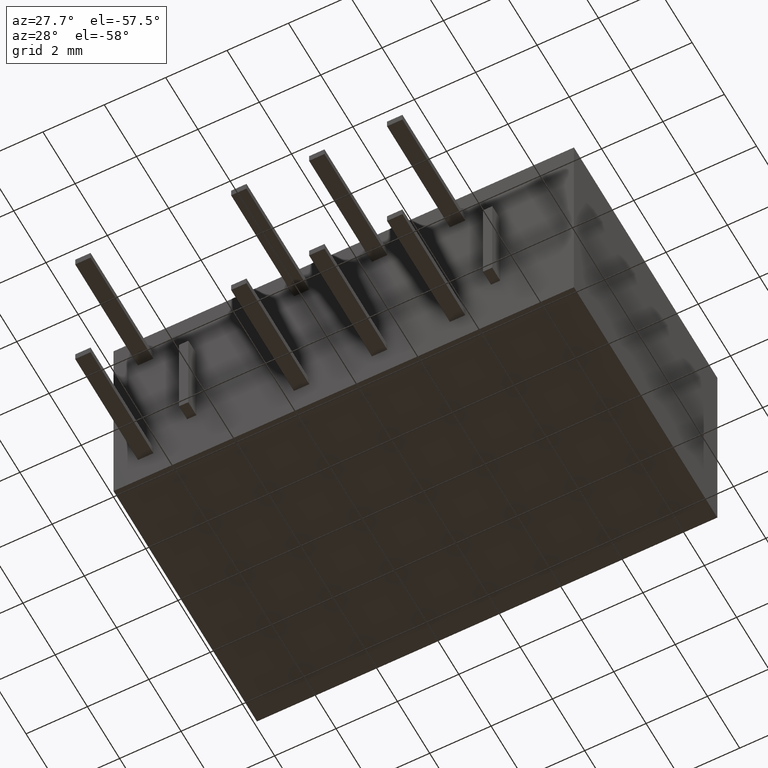
[diagram: clean part render]
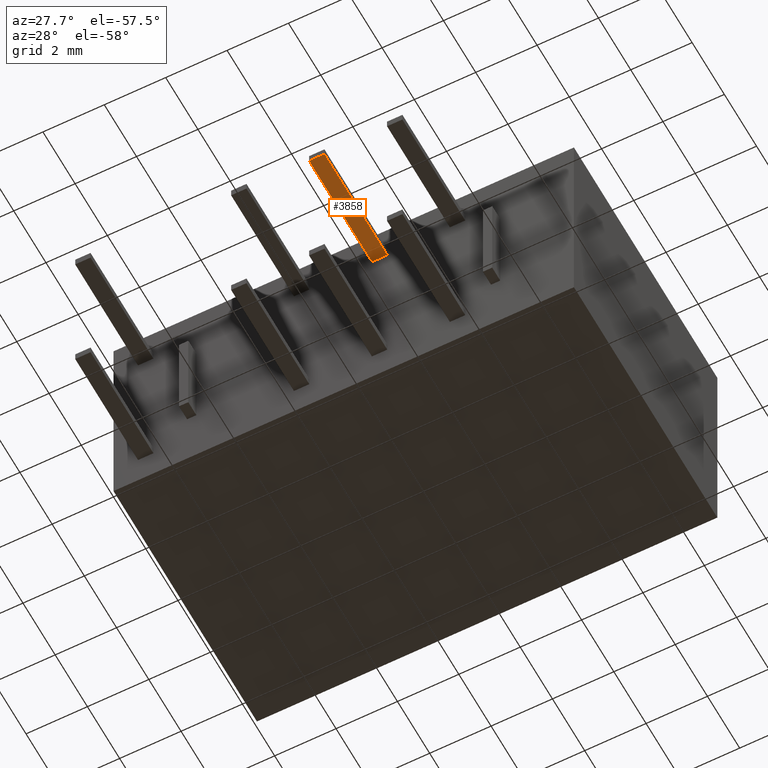
[diagram: same view with one face highlighted and labeled with its STEP entity id]
A machine part, auxiliary view. The second image highlights one B-rep face of the part: STEP entity #3858.
In plain terms, the highlighted planar face has unit normal (-0, 0, 1).
Its self-contained STEP definition (entity closure, byte-faithful):
#42 = EDGE_LOOP ( 'NONE', ( #3245, #1572, #2606, #2316 ) ) ;
#73 = VERTEX_POINT ( 'NONE', #4264 ) ;
#185 = LINE ( 'NONE', #4487, #4148 ) ;
#190 = DIRECTION ( 'NONE',  ( 1.000000000000000000, 0.0000000000000000000, 0.0000000000000000000 ) ) ;
#210 = VERTEX_POINT ( 'NONE', #3959 ) ;
#283 = EDGE_CURVE ( 'NONE', #210, #73, #2872, .T. ) ;
#423 = CARTESIAN_POINT ( 'NONE',  ( 8.919999999999999900, -3.899999999999999900, -1.335000000000015300 ) ) ;
#864 = EDGE_CURVE ( 'NONE', #3375, #3284, #1428, .T. ) ;
#1090 = DIRECTION ( 'NONE',  ( -0.0000000000000000000, 0.0000000000000000000, 1.000000000000000000 ) ) ;
#1376 = EDGE_CURVE ( 'NONE', #210, #3375, #185, .T. ) ;
#1428 = LINE ( 'NONE', #4072, #1959 ) ;
#1572 = ORIENTED_EDGE ( 'NONE', *, *, #4076, .F. ) ;
#1600 = DIRECTION ( 'NONE',  ( -0.0000000000000000000, 1.000000000000000000, -0.0000000000000000000 ) ) ;
#1849 = VECTOR ( 'NONE', #3241, 1000.000000000000000 ) ;
#1919 = CARTESIAN_POINT ( 'NONE',  ( 8.919999999999999900, 0.0000000000000000000, -1.335000000000015300 ) ) ;
#1959 = VECTOR ( 'NONE', #190, 1000.000000000000000 ) ;
#2257 = FACE_OUTER_BOUND ( 'NONE', #42, .T. ) ;
#2316 = ORIENTED_EDGE ( 'NONE', *, *, #1376, .T. ) ;
#2452 = CARTESIAN_POINT ( 'NONE',  ( 8.419999999999998200, -3.899999999999999900, -1.335000000000015300 ) ) ;
#2455 = AXIS2_PLACEMENT_3D ( 'NONE', #4464, #1090, #4485 ) ;
#2606 = ORIENTED_EDGE ( 'NONE', *, *, #283, .F. ) ;
#2872 = LINE ( 'NONE', #2452, #1849 ) ;
#3241 = DIRECTION ( 'NONE',  ( 1.000000000000000000, 0.0000000000000000000, 0.0000000000000000000 ) ) ;
#3245 = ORIENTED_EDGE ( 'NONE', *, *, #864, .T. ) ;
#3284 = VERTEX_POINT ( 'NONE', #1919 ) ;
#3375 = VERTEX_POINT ( 'NONE', #3630 ) ;
#3630 = CARTESIAN_POINT ( 'NONE',  ( 8.419999999999998200, 0.0000000000000000000, -1.335000000000015300 ) ) ;
#3734 = DIRECTION ( 'NONE',  ( -0.0000000000000000000, 1.000000000000000000, -0.0000000000000000000 ) ) ;
#3858 = ADVANCED_FACE ( 'NONE', ( #2257 ), #3991, .F. ) ;
#3959 = CARTESIAN_POINT ( 'NONE',  ( 8.419999999999998200, -3.899999999999999900, -1.335000000000015300 ) ) ;
#3991 = PLANE ( 'NONE',  #2455 ) ;
#4072 = CARTESIAN_POINT ( 'NONE',  ( 8.419999999999998200, 0.0000000000000000000, -1.335000000000015300 ) ) ;
#4076 = EDGE_CURVE ( 'NONE', #73, #3284, #4432, .T. ) ;
#4079 = VECTOR ( 'NONE', #1600, 1000.000000000000000 ) ;
#4148 = VECTOR ( 'NONE', #3734, 1000.000000000000000 ) ;
#4264 = CARTESIAN_POINT ( 'NONE',  ( 8.919999999999999900, -3.899999999999999900, -1.335000000000015300 ) ) ;
#4432 = LINE ( 'NONE', #423, #4079 ) ;
#4464 = CARTESIAN_POINT ( 'NONE',  ( 8.419999999999998200, -3.899999999999999900, -1.335000000000015300 ) ) ;
#4485 = DIRECTION ( 'NONE',  ( 1.000000000000000000, 0.0000000000000000000, 0.0000000000000000000 ) ) ;
#4487 = CARTESIAN_POINT ( 'NONE',  ( 8.419999999999998200, -3.899999999999999900, -1.335000000000015300 ) ) ;